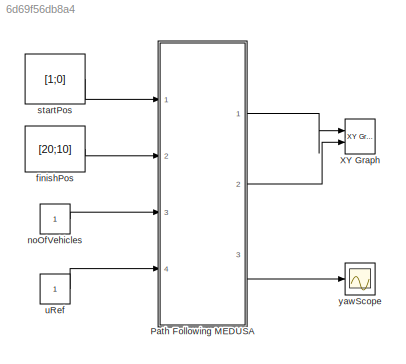
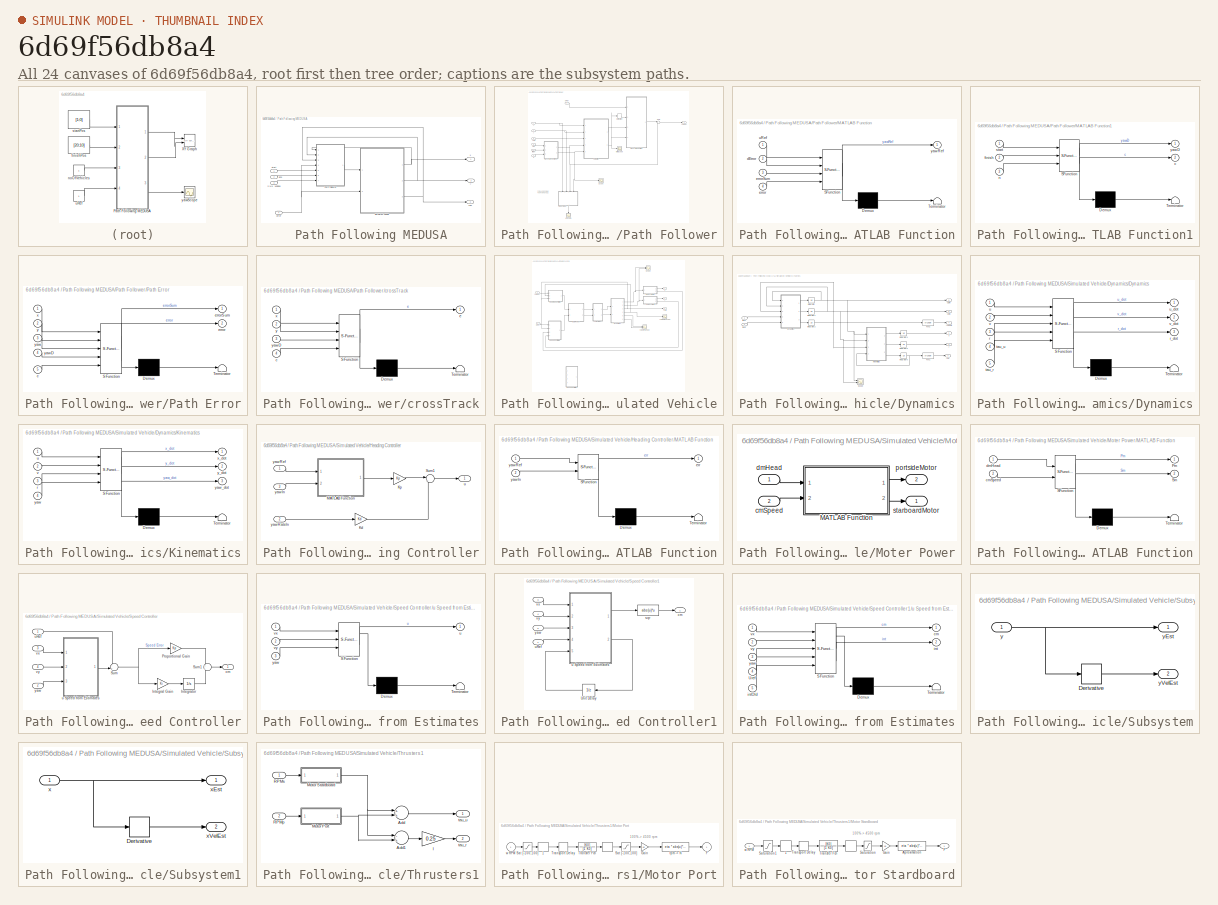
[diagram: thumbnail index - all 24 canvases of the model, root first then tree order]
MODEL slx_6d69f56db8a4
KIND model
CONFIG AbsTol = auto
CONFIG EnableMultiTasking = off
CONFIG FixedStep = 0.2
CONFIG MaxStep = auto
CONFIG MinStep = auto
CONFIG RelTol = 1e-3
CONFIG SampleTimeConstraint = Unconstrained
CONFIG Solver = FixedStepAuto
CONFIG SolverName = FixedStepAuto
CONFIG StartTime = 0.0
CONFIG StopTime = 240
BLOCK [SubSystem] Path Following MEDUSA
  Ports = [4, 3]
  RequestExecContextInheritance = off
  Variant = off
BLOCK [Inport] Path Following MEDUSA/End
  IconDisplay = Port number
  Port = 2
BLOCK [SubSystem] Path Following MEDUSA/Path Follower
  Ports = [7, 1]
  RequestExecContextInheritance = off
  Variant = off
BLOCK [Derivative] Path Following MEDUSA/Path Follower/Derivative
BLOCK [SubSystem] Path Following MEDUSA/Path Follower/MATLAB Function
  ErrorFcn = Stateflow.Translate.translate
  PermitHierarchicalResolution = ExplicitOnly
  Ports = [4, 1]
  RequestExecContextInheritance = off
  SFBlockType = MATLAB Function
  TreatAsAtomicUnit = on
  Variant = off
BLOCK [Demux] Path Following MEDUSA/Path Follower/MATLAB Function/ Demux 
  Outputs = 1
  Ports = [1, 1]
BLOCK [S-Function] Path Following MEDUSA/Path Follower/MATLAB Function/ SFunction 
  EnableBusSupport = on
  FunctionName = sf_sfun
  Parameters = Ts
  PortCounts = [4 2]
  Ports = [4, 2]
  SFcnIsStateOwnerBlock = off
  SFunctionDeploymentMode = off
  Tag = Stateflow S-Function straightLine 8
BLOCK [Terminator] Path Following MEDUSA/Path Follower/MATLAB Function/ Terminator 
BLOCK [Inport] Path Following MEDUSA/Path Follower/MATLAB Function/dError
  IconDisplay = Port number
  Port = 2
BLOCK [Inport] Path Following MEDUSA/Path Follower/MATLAB Function/error
  IconDisplay = Port number
  Port = 4
BLOCK [Inport] Path Following MEDUSA/Path Follower/MATLAB Function/errorSum
  IconDisplay = Port number
  Port = 3
BLOCK [Inport] Path Following MEDUSA/Path Follower/MATLAB Function/uRef
  IconDisplay = Port number
BLOCK [Outport] Path Following MEDUSA/Path Follower/MATLAB Function/yawRef
  IconDisplay = Port number
BLOCK [SubSystem] Path Following MEDUSA/Path Follower/MATLAB Function1
  ErrorFcn = Stateflow.Translate.translate
  PermitHierarchicalResolution = ExplicitOnly
  Ports = [3, 2]
  RequestExecContextInheritance = off
  SFBlockType = MATLAB Function
  TreatAsAtomicUnit = on
  Variant = off
BLOCK [Demux] Path Following MEDUSA/Path Follower/MATLAB Function1/ Demux 
  Outputs = 1
  Ports = [1, 1]
BLOCK [S-Function] Path Following MEDUSA/Path Follower/MATLAB Function1/ SFunction 
  EnableBusSupport = on
  FunctionName = sf_sfun
  PortCounts = [3 3]
  Ports = [3, 3]
  SFcnIsStateOwnerBlock = off
  SFunctionDeploymentMode = off
  Tag = Stateflow S-Function straightLine 9
BLOCK [Terminator] Path Following MEDUSA/Path Follower/MATLAB Function1/ Terminator 
BLOCK [Outport] Path Following MEDUSA/Path Follower/MATLAB Function1/c
  IconDisplay = Port number
  Port = 2
BLOCK [Inport] Path Following MEDUSA/Path Follower/MATLAB Function1/finish
  IconDisplay = Port number
  Port = 2
BLOCK [Inport] Path Following MEDUSA/Path Follower/MATLAB Function1/n
  IconDisplay = Port number
  Port = 3
BLOCK [Inport] Path Following MEDUSA/Path Follower/MATLAB Function1/start
  IconDisplay = Port number
BLOCK [Outport] Path Following MEDUSA/Path Follower/MATLAB Function1/yawD
  IconDisplay = Port number
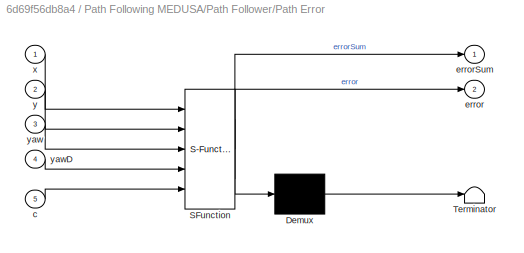
BLOCK [SubSystem] Path Following MEDUSA/Path Follower/Path Error
  ErrorFcn = Stateflow.Translate.translate
  PermitHierarchicalResolution = ExplicitOnly
  Ports = [5, 2]
  RequestExecContextInheritance = off
  SFBlockType = MATLAB Function
  TreatAsAtomicUnit = on
  Variant = off
BLOCK [Demux] Path Following MEDUSA/Path Follower/Path Error/ Demux 
  Outputs = 1
  Ports = [1, 1]
BLOCK [S-Function] Path Following MEDUSA/Path Follower/Path Error/ SFunction 
  EnableBusSupport = on
  FunctionName = sf_sfun
  PortCounts = [5 3]
  Ports = [5, 3]
  SFcnIsStateOwnerBlock = off
  SFunctionDeploymentMode = off
  Tag = Stateflow S-Function straightLine 7
BLOCK [Terminator] Path Following MEDUSA/Path Follower/Path Error/ Terminator 
BLOCK [Inport] Path Following MEDUSA/Path Follower/Path Error/c
  IconDisplay = Port number
  Port = 5
BLOCK [Outport] Path Following MEDUSA/Path Follower/Path Error/error
  IconDisplay = Port number
  Port = 2
BLOCK [Outport] Path Following MEDUSA/Path Follower/Path Error/errorSum
  IconDisplay = Port number
BLOCK [Inport] Path Following MEDUSA/Path Follower/Path Error/x
  IconDisplay = Port number
BLOCK [Inport] Path Following MEDUSA/Path Follower/Path Error/y
  IconDisplay = Port number
  Port = 2
BLOCK [Inport] Path Following MEDUSA/Path Follower/Path Error/yaw
  IconDisplay = Port number
  Port = 3
BLOCK [Inport] Path Following MEDUSA/Path Follower/Path Error/yawD
  IconDisplay = Port number
  Port = 4
BLOCK [Scope] Path Following MEDUSA/Path Follower/Scope
  NumInputPorts = 1
  Ports = [1]
  ScopeSpecificationString = Simulink.scopes.TimeScopeBlockCfg('CurrentConfiguration', extmgr.ConfigurationSet(extmgr.Configuration('Core','General UI',true),extmgr.Configuration('Core','Source UI',true),extmgr.Configuration('Sources','WiredSimulink',true,'DataLoggingVariableName','ScopeData5'),extmgr.Configuration('Visuals','Time Domain',true,'SerializedDisplays',{struct('MinYLimReal','-0.62632','MaxYLimReal','-0.42632','YLa...<+1379ch>
BLOCK [Sum] Path Following MEDUSA/Path Follower/Sum
  IconShape = round
  InputSameDT = off
  Inputs = |++
  OutDataTypeStr = Inherit: Inherit via internal rule
  Ports = [2, 1]
  SaturateOnIntegerOverflow = off
BLOCK [SubSystem] Path Following MEDUSA/Path Follower/crossTrack
  ErrorFcn = Stateflow.Translate.translate
  PermitHierarchicalResolution = ExplicitOnly
  Ports = [4, 1]
  RequestExecContextInheritance = off
  SFBlockType = MATLAB Function
  TreatAsAtomicUnit = on
  Variant = off
BLOCK [Demux] Path Following MEDUSA/Path Follower/crossTrack/ Demux 
  Outputs = 1
  Ports = [1, 1]
BLOCK [S-Function] Path Following MEDUSA/Path Follower/crossTrack/ SFunction 
  EnableBusSupport = on
  FunctionName = sf_sfun
  PortCounts = [4 2]
  Ports = [4, 2]
  SFcnIsStateOwnerBlock = off
  SFunctionDeploymentMode = off
  Tag = Stateflow S-Function straightLine 10
BLOCK [Terminator] Path Following MEDUSA/Path Follower/crossTrack/ Terminator 
BLOCK [Inport] Path Following MEDUSA/Path Follower/crossTrack/c
  IconDisplay = Port number
  Port = 4
BLOCK [Outport] Path Following MEDUSA/Path Follower/crossTrack/e
  IconDisplay = Port number
BLOCK [Inport] Path Following MEDUSA/Path Follower/crossTrack/x
  IconDisplay = Port number
BLOCK [Inport] Path Following MEDUSA/Path Follower/crossTrack/y
  IconDisplay = Port number
  Port = 2
BLOCK [Inport] Path Following MEDUSA/Path Follower/crossTrack/yawD
  IconDisplay = Port number
  Port = 3
BLOCK [Scope] Path Following MEDUSA/Path Follower/eScope
  NumInputPorts = 1
  Ports = [1]
  ScopeSpecificationString = Simulink.scopes.TimeScopeBlockCfg('CurrentConfiguration', extmgr.ConfigurationSet(extmgr.Configuration('Core','General UI',true),extmgr.Configuration('Core','Source UI',true),extmgr.Configuration('Sources','WiredSimulink',true,'DataLoggingVariableName','ScopeData4'),extmgr.Configuration('Visuals','Time Domain',true,'SerializedDisplays',{struct('MinYLimReal','-0.11922','MaxYLimReal','0.53074','YLab...<+1450ch>
BLOCK [Scope] Path Following MEDUSA/Path Follower/errorScope
  NumInputPorts = 1
  Ports = [1]
  ScopeSpecificationString = Simulink.scopes.TimeScopeBlockCfg('CurrentConfiguration', extmgr.ConfigurationSet(extmgr.Configuration('Core','General UI',true),extmgr.Configuration('Core','Source UI',true),extmgr.Configuration('Sources','WiredSimulink',true,'DataLoggingVariableName','ScopeData1'),extmgr.Configuration('Visuals','Time Domain',true,'SerializedDisplays',{struct('MinYLimReal','-6.50896','MaxYLimReal','31.56604','YLa...<+1481ch>
BLOCK [Inport] Path Following MEDUSA/Path Follower/finish
  IconDisplay = Port number
  Port = 6
BLOCK [Inport] Path Following MEDUSA/Path Follower/n 
  IconDisplay = Port number
  Port = 7
BLOCK [Inport] Path Following MEDUSA/Path Follower/start
  IconDisplay = Port number
  Port = 5
BLOCK [Inport] Path Following MEDUSA/Path Follower/uRef
  IconDisplay = Port number
  Port = 4
BLOCK [Inport] Path Following MEDUSA/Path Follower/x
  IconDisplay = Port number
BLOCK [Inport] Path Following MEDUSA/Path Follower/y 
  IconDisplay = Port number
  Port = 2
BLOCK [Inport] Path Following MEDUSA/Path Follower/yaw
  IconDisplay = Port number
  Port = 3
BLOCK [Outport] Path Following MEDUSA/Path Follower/yawRef
  IconDisplay = Port number
BLOCK [SubSystem] Path Following MEDUSA/Simulated Vehicle
  Ports = [2, 3]
  RequestExecContextInheritance = off
  Variant = off
BLOCK [SubSystem] Path Following MEDUSA/Simulated Vehicle/Dynamics
  Ports = [2, 6]
  RequestExecContextInheritance = off
  Variant = off
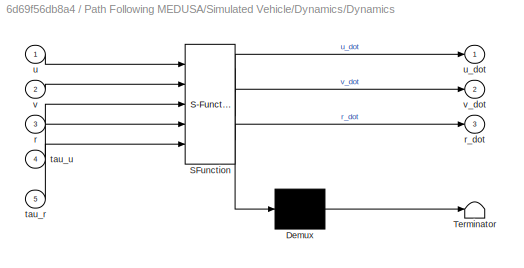
BLOCK [SubSystem] Path Following MEDUSA/Simulated Vehicle/Dynamics/Dynamics
  ErrorFcn = Stateflow.Translate.translate
  PermitHierarchicalResolution = ExplicitOnly
  Ports = [5, 3]
  RequestExecContextInheritance = off
  SFBlockType = MATLAB Function
  TreatAsAtomicUnit = on
  Variant = off
BLOCK [Demux] Path Following MEDUSA/Simulated Vehicle/Dynamics/Dynamics/ Demux 
  Outputs = 1
  Ports = [1, 1]
BLOCK [S-Function] Path Following MEDUSA/Simulated Vehicle/Dynamics/Dynamics/ SFunction 
  EnableBusSupport = on
  FunctionName = sf_sfun
  PortCounts = [5 4]
  Ports = [5, 4]
  SFcnIsStateOwnerBlock = off
  SFunctionDeploymentMode = off
  Tag = Stateflow S-Function straightLine 2
BLOCK [Terminator] Path Following MEDUSA/Simulated Vehicle/Dynamics/Dynamics/ Terminator 
BLOCK [Inport] Path Following MEDUSA/Simulated Vehicle/Dynamics/Dynamics/r
  IconDisplay = Port number
  Port = 3
BLOCK [Outport] Path Following MEDUSA/Simulated Vehicle/Dynamics/Dynamics/r_dot
  IconDisplay = Port number
  Port = 3
BLOCK [Inport] Path Following MEDUSA/Simulated Vehicle/Dynamics/Dynamics/tau_r
  IconDisplay = Port number
  Port = 5
BLOCK [Inport] Path Following MEDUSA/Simulated Vehicle/Dynamics/Dynamics/tau_u
  IconDisplay = Port number
  Port = 4
BLOCK [Inport] Path Following MEDUSA/Simulated Vehicle/Dynamics/Dynamics/u
  IconDisplay = Port number
BLOCK [Outport] Path Following MEDUSA/Simulated Vehicle/Dynamics/Dynamics/u_dot
  IconDisplay = Port number
BLOCK [Inport] Path Following MEDUSA/Simulated Vehicle/Dynamics/Dynamics/v
  IconDisplay = Port number
  Port = 2
BLOCK [Outport] Path Following MEDUSA/Simulated Vehicle/Dynamics/Dynamics/v_dot
  IconDisplay = Port number
  Port = 2
BLOCK [Fcn] Path Following MEDUSA/Simulated Vehicle/Dynamics/Fcn1
  Expr = u*180/pi
BLOCK [Fcn] Path Following MEDUSA/Simulated Vehicle/Dynamics/Fcn2
  Expr = u*180/pi
BLOCK [Integrator] Path Following MEDUSA/Simulated Vehicle/Dynamics/Integrator
  Ports = [1, 1]
BLOCK [Integrator] Path Following MEDUSA/Simulated Vehicle/Dynamics/Integrator1
  Ports = [1, 1]
BLOCK [Integrator] Path Following MEDUSA/Simulated Vehicle/Dynamics/Integrator2
  Ports = [1, 1]
BLOCK [Integrator] Path Following MEDUSA/Simulated Vehicle/Dynamics/Integrator4
  Ports = [1, 1]
BLOCK [Integrator] Path Following MEDUSA/Simulated Vehicle/Dynamics/Integrator5
  Ports = [1, 1]
BLOCK [Integrator] Path Following MEDUSA/Simulated Vehicle/Dynamics/Integrator6
  Ports = [1, 1]
BLOCK [SubSystem] Path Following MEDUSA/Simulated Vehicle/Dynamics/Kinematics
  ErrorFcn = Stateflow.Translate.translate
  PermitHierarchicalResolution = ExplicitOnly
  Ports = [4, 3]
  RequestExecContextInheritance = off
  SFBlockType = MATLAB Function
  TreatAsAtomicUnit = on
  Variant = off
BLOCK [Demux] Path Following MEDUSA/Simulated Vehicle/Dynamics/Kinematics/ Demux 
  Outputs = 1
  Ports = [1, 1]
BLOCK [S-Function] Path Following MEDUSA/Simulated Vehicle/Dynamics/Kinematics/ SFunction 
  EnableBusSupport = on
  FunctionName = sf_sfun
  PortCounts = [4 4]
  Ports = [4, 4]
  SFcnIsStateOwnerBlock = off
  SFunctionDeploymentMode = off
  Tag = Stateflow S-Function straightLine 1
BLOCK [Terminator] Path Following MEDUSA/Simulated Vehicle/Dynamics/Kinematics/ Terminator 
BLOCK [Inport] Path Following MEDUSA/Simulated Vehicle/Dynamics/Kinematics/r
  IconDisplay = Port number
  Port = 3
BLOCK [Inport] Path Following MEDUSA/Simulated Vehicle/Dynamics/Kinematics/u
  IconDisplay = Port number
BLOCK [Inport] Path Following MEDUSA/Simulated Vehicle/Dynamics/Kinematics/v
  IconDisplay = Port number
  Port = 2
BLOCK [Outport] Path Following MEDUSA/Simulated Vehicle/Dynamics/Kinematics/x_dot
  IconDisplay = Port number
BLOCK [Outport] Path Following MEDUSA/Simulated Vehicle/Dynamics/Kinematics/y_dot
  IconDisplay = Port number
  Port = 2
BLOCK [Inport] Path Following MEDUSA/Simulated Vehicle/Dynamics/Kinematics/yaw
  IconDisplay = Port number
  Port = 4
BLOCK [Outport] Path Following MEDUSA/Simulated Vehicle/Dynamics/Kinematics/yaw_dot
  IconDisplay = Port number
  Port = 3
BLOCK [Scope] Path Following MEDUSA/Simulated Vehicle/Dynamics/Scope
  NumInputPorts = 2
  Ports = [2]
  ScopeSpecificationString = Simulink.scopes.TimeScopeBlockCfg('CurrentConfiguration', extmgr.ConfigurationSet(extmgr.Configuration('Core','General UI',true),extmgr.Configuration('Core','Source UI',true),extmgr.Configuration('Sources','WiredSimulink',true,'DataLoggingVariableName','ScopeData1'),extmgr.Configuration('Visuals','Time Domain',true,'SerializedDisplays',{struct('MinYLimReal','-0.35776','MaxYLimReal','1.16677','YLab...<+1438ch>
BLOCK [Inport] Path Following MEDUSA/Simulated Vehicle/Dynamics/tauR
  IconDisplay = Port number
  Port = 2
BLOCK [Inport] Path Following MEDUSA/Simulated Vehicle/Dynamics/tauU
  IconDisplay = Port number
BLOCK [Outport] Path Following MEDUSA/Simulated Vehicle/Dynamics/uSim
  IconDisplay = Port number
  Port = 5
BLOCK [Outport] Path Following MEDUSA/Simulated Vehicle/Dynamics/vSim
  IconDisplay = Port number
  Port = 6
BLOCK [Outport] Path Following MEDUSA/Simulated Vehicle/Dynamics/x
  IconDisplay = Port number
BLOCK [Outport] Path Following MEDUSA/Simulated Vehicle/Dynamics/y
  IconDisplay = Port number
  Port = 2
BLOCK [Outport] Path Following MEDUSA/Simulated Vehicle/Dynamics/yaw
  IconDisplay = Port number
  Port = 3
BLOCK [Outport] Path Following MEDUSA/Simulated Vehicle/Dynamics/yawRate
  IconDisplay = Port number
  Port = 4
BLOCK [SubSystem] Path Following MEDUSA/Simulated Vehicle/Heading Controller
  Ports = [3, 1]
  RequestExecContextInheritance = off
  Variant = off
BLOCK [Gain] Path Following MEDUSA/Simulated Vehicle/Heading Controller/Kd
  Gain = Kd
  OutDataTypeStr = Inherit: Inherit via internal rule
  ParamDataTypeStr = Inherit: Inherit via internal rule
  SaturateOnIntegerOverflow = off
BLOCK [Gain] Path Following MEDUSA/Simulated Vehicle/Heading Controller/Kp
  Gain = Kp
  OutDataTypeStr = Inherit: Inherit via internal rule
  ParamDataTypeStr = Inherit: Inherit via internal rule
  SaturateOnIntegerOverflow = off
BLOCK [SubSystem] Path Following MEDUSA/Simulated Vehicle/Heading Controller/MATLAB Function
  ErrorFcn = Stateflow.Translate.translate
  PermitHierarchicalResolution = ExplicitOnly
  Ports = [2, 1]
  RequestExecContextInheritance = off
  SFBlockType = MATLAB Function
  TreatAsAtomicUnit = on
  Variant = off
BLOCK [Demux] Path Following MEDUSA/Simulated Vehicle/Heading Controller/MATLAB Function/ Demux 
  Outputs = 1
  Ports = [1, 1]
BLOCK [S-Function] Path Following MEDUSA/Simulated Vehicle/Heading Controller/MATLAB Function/ SFunction 
  EnableBusSupport = on
  FunctionName = sf_sfun
  PortCounts = [2 2]
  Ports = [2, 2]
  SFcnIsStateOwnerBlock = off
  SFunctionDeploymentMode = off
  Tag = Stateflow S-Function straightLine 5
BLOCK [Terminator] Path Following MEDUSA/Simulated Vehicle/Heading Controller/MATLAB Function/ Terminator 
BLOCK [Outport] Path Following MEDUSA/Simulated Vehicle/Heading Controller/MATLAB Function/err
  IconDisplay = Port number
BLOCK [Inport] Path Following MEDUSA/Simulated Vehicle/Heading Controller/MATLAB Function/yawIn
  IconDisplay = Port number
  Port = 2
BLOCK [Inport] Path Following MEDUSA/Simulated Vehicle/Heading Controller/MATLAB Function/yawRef
  IconDisplay = Port number
BLOCK [Sum] Path Following MEDUSA/Simulated Vehicle/Heading Controller/Sum1
  IconShape = round
  InputSameDT = off
  Inputs = |+-
  OutDataTypeStr = Inherit: Inherit via internal rule
  Ports = [2, 1]
  SaturateOnIntegerOverflow = off
BLOCK [Outport] Path Following MEDUSA/Simulated Vehicle/Heading Controller/u
  IconDisplay = Port number
BLOCK [Inport] Path Following MEDUSA/Simulated Vehicle/Heading Controller/yawIn
  IconDisplay = Port number
  Port = 3
BLOCK [Inport] Path Following MEDUSA/Simulated Vehicle/Heading Controller/yawRateIn
  IconDisplay = Port number
  Port = 2
BLOCK [Inport] Path Following MEDUSA/Simulated Vehicle/Heading Controller/yawRef
  IconDisplay = Port number
BLOCK [SubSystem] Path Following MEDUSA/Simulated Vehicle/Moter Power
  Ports = [2, 2]
  RequestExecContextInheritance = off
  Variant = off
BLOCK [SubSystem] Path Following MEDUSA/Simulated Vehicle/Moter Power/MATLAB Function
  ErrorFcn = Stateflow.Translate.translate
  PermitHierarchicalResolution = ExplicitOnly
  Ports = [2, 2]
  RequestExecContextInheritance = off
  SFBlockType = MATLAB Function
  TreatAsAtomicUnit = on
  Variant = off
BLOCK [Demux] Path Following MEDUSA/Simulated Vehicle/Moter Power/MATLAB Function/ Demux 
  Outputs = 1
  Ports = [1, 1]
BLOCK [S-Function] Path Following MEDUSA/Simulated Vehicle/Moter Power/MATLAB Function/ SFunction 
  EnableBusSupport = on
  FunctionName = sf_sfun
  PortCounts = [2 3]
  Ports = [2, 3]
  SFcnIsStateOwnerBlock = off
  SFunctionDeploymentMode = off
  Tag = Stateflow S-Function straightLine 4
BLOCK [Terminator] Path Following MEDUSA/Simulated Vehicle/Moter Power/MATLAB Function/ Terminator 
BLOCK [Outport] Path Following MEDUSA/Simulated Vehicle/Moter Power/MATLAB Function/Pm
  IconDisplay = Port number
BLOCK [Outport] Path Following MEDUSA/Simulated Vehicle/Moter Power/MATLAB Function/Sm
  IconDisplay = Port number
  Port = 2
BLOCK [Inport] Path Following MEDUSA/Simulated Vehicle/Moter Power/MATLAB Function/cmSpeed
  IconDisplay = Port number
  Port = 2
BLOCK [Inport] Path Following MEDUSA/Simulated Vehicle/Moter Power/MATLAB Function/dmHead
  IconDisplay = Port number
BLOCK [Inport] Path Following MEDUSA/Simulated Vehicle/Moter Power/cmSpeed
  IconDisplay = Port number
  Port = 2
BLOCK [Inport] Path Following MEDUSA/Simulated Vehicle/Moter Power/dmHead
  IconDisplay = Port number
BLOCK [Outport] Path Following MEDUSA/Simulated Vehicle/Moter Power/portsideMotor
  IconDisplay = Port number
  Port = 2
BLOCK [Outport] Path Following MEDUSA/Simulated Vehicle/Moter Power/starboardMotor
  IconDisplay = Port number
BLOCK [Scope] Path Following MEDUSA/Simulated Vehicle/Scope
  NumInputPorts = 2
  Ports = [2]
  ScopeSpecificationString = Simulink.scopes.TimeScopeBlockCfg('CurrentConfiguration', extmgr.ConfigurationSet(extmgr.Configuration('Core','General UI',true),extmgr.Configuration('Core','Source UI',true),extmgr.Configuration('Sources','WiredSimulink',true,'DataLoggingVariableName','ScopeData2'),extmgr.Configuration('Visuals','Time Domain',true,'SerializedDisplays',{struct('MinYLimReal','-90.83707','MaxYLimReal','817.53361','Y...<+1409ch>
BLOCK [SubSystem] Path Following MEDUSA/Simulated Vehicle/Speed Controller
  Commented = on
  Ports = [4, 1]
  RequestExecContextInheritance = off
  Variant = off
BLOCK [Gain] Path Following MEDUSA/Simulated Vehicle/Speed Controller/Integral Gain
  Gain = Ki
  OutDataTypeStr = Inherit: Inherit via internal rule
  ParamDataTypeStr = Inherit: Inherit via internal rule
  SaturateOnIntegerOverflow = off
BLOCK [Integrator] Path Following MEDUSA/Simulated Vehicle/Speed Controller/Integrator
  Ports = [1, 1]
BLOCK [Gain] Path Following MEDUSA/Simulated Vehicle/Speed Controller/Proportional Gain
  Gain = Kp
  OutDataTypeStr = Inherit: Inherit via internal rule
  ParamDataTypeStr = Inherit: Inherit via internal rule
  SaturateOnIntegerOverflow = off
BLOCK [Sum] Path Following MEDUSA/Simulated Vehicle/Speed Controller/Sum
  IconShape = round
  InputSameDT = off
  Inputs = -+|
  OutDataTypeStr = Inherit: Inherit via internal rule
  Ports = [2, 1]
  SaturateOnIntegerOverflow = off
BLOCK [Sum] Path Following MEDUSA/Simulated Vehicle/Speed Controller/Sum1
  IconShape = round
  InputSameDT = off
  Inputs = +|+
  OutDataTypeStr = Inherit: Inherit via internal rule
  Ports = [2, 1]
  SaturateOnIntegerOverflow = off
BLOCK [Outport] Path Following MEDUSA/Simulated Vehicle/Speed Controller/cm
  IconDisplay = Port number
BLOCK [SubSystem] Path Following MEDUSA/Simulated Vehicle/Speed Controller/u Speed from Estimates
  ErrorFcn = Stateflow.Translate.translate
  PermitHierarchicalResolution = ExplicitOnly
  Ports = [3, 1]
  RequestExecContextInheritance = off
  SFBlockType = MATLAB Function
  TreatAsAtomicUnit = on
  Variant = off
BLOCK [Demux] Path Following MEDUSA/Simulated Vehicle/Speed Controller/u Speed from Estimates/ Demux 
  Outputs = 1
  Ports = [1, 1]
BLOCK [S-Function] Path Following MEDUSA/Simulated Vehicle/Speed Controller/u Speed from Estimates/ SFunction 
  EnableBusSupport = on
  FunctionName = sf_sfun
  PortCounts = [3 2]
  Ports = [3, 2]
  SFcnIsStateOwnerBlock = off
  SFunctionDeploymentMode = off
  Tag = Stateflow S-Function straightLine 6
BLOCK [Terminator] Path Following MEDUSA/Simulated Vehicle/Speed Controller/u Speed from Estimates/ Terminator 
BLOCK [Outport] Path Following MEDUSA/Simulated Vehicle/Speed Controller/u Speed from Estimates/u
  IconDisplay = Port number
BLOCK [Inport] Path Following MEDUSA/Simulated Vehicle/Speed Controller/u Speed from Estimates/vx
  IconDisplay = Port number
BLOCK [Inport] Path Following MEDUSA/Simulated Vehicle/Speed Controller/u Speed from Estimates/vy
  IconDisplay = Port number
  Port = 2
BLOCK [Inport] Path Following MEDUSA/Simulated Vehicle/Speed Controller/u Speed from Estimates/yaw
  IconDisplay = Port number
  Port = 3
BLOCK [Inport] Path Following MEDUSA/Simulated Vehicle/Speed Controller/uRef
  IconDisplay = Port number
BLOCK [Inport] Path Following MEDUSA/Simulated Vehicle/Speed Controller/vx
  IconDisplay = Port number
  Port = 3
BLOCK [Inport] Path Following MEDUSA/Simulated Vehicle/Speed Controller/vy
  IconDisplay = Port number
  Port = 4
BLOCK [Inport] Path Following MEDUSA/Simulated Vehicle/Speed Controller/yaw
  IconDisplay = Port number
  Port = 2
BLOCK [SubSystem] Path Following MEDUSA/Simulated Vehicle/Speed Controller1
  Ports = [4, 1]
  RequestExecContextInheritance = off
  Variant = off
BLOCK [UnitDelay] Path Following MEDUSA/Simulated Vehicle/Speed Controller1/Unit Delay
  SampleTime = -1
BLOCK [Outport] Path Following MEDUSA/Simulated Vehicle/Speed Controller1/cm
  IconDisplay = Port number
BLOCK [Fcn] Path Following MEDUSA/Simulated Vehicle/Speed Controller1/sqr
  Expr = abs(u)*u
BLOCK [SubSystem] Path Following MEDUSA/Simulated Vehicle/Speed Controller1/u Speed from Estimates
  ErrorFcn = Stateflow.Translate.translate
  PermitHierarchicalResolution = ExplicitOnly
  Ports = [5, 2]
  RequestExecContextInheritance = off
  SFBlockType = MATLAB Function
  TreatAsAtomicUnit = on
  Variant = off
BLOCK [Demux] Path Following MEDUSA/Simulated Vehicle/Speed Controller1/u Speed from Estimates/ Demux 
  Outputs = 1
  Ports = [1, 1]
BLOCK [S-Function] Path Following MEDUSA/Simulated Vehicle/Speed Controller1/u Speed from Estimates/ SFunction 
  EnableBusSupport = on
  FunctionName = sf_sfun
  Parameters = KSat,Ki,Kp
  PortCounts = [5 3]
  Ports = [5, 3]
  SFcnIsStateOwnerBlock = off
  SFunctionDeploymentMode = off
  Tag = Stateflow S-Function straightLine 3
BLOCK [Terminator] Path Following MEDUSA/Simulated Vehicle/Speed Controller1/u Speed from Estimates/ Terminator 
BLOCK [Inport] Path Following MEDUSA/Simulated Vehicle/Speed Controller1/u Speed from Estimates/Uref
  IconDisplay = Port number
  Port = 4
BLOCK [Outport] Path Following MEDUSA/Simulated Vehicle/Speed Controller1/u Speed from Estimates/cm
  IconDisplay = Port number
BLOCK [Outport] Path Following MEDUSA/Simulated Vehicle/Speed Controller1/u Speed from Estimates/int
  IconDisplay = Port number
  Port = 2
BLOCK [Inport] Path Following MEDUSA/Simulated Vehicle/Speed Controller1/u Speed from Estimates/intOld
  IconDisplay = Port number
  Port = 5
BLOCK [Inport] Path Following MEDUSA/Simulated Vehicle/Speed Controller1/u Speed from Estimates/vx
  IconDisplay = Port number
BLOCK [Inport] Path Following MEDUSA/Simulated Vehicle/Speed Controller1/u Speed from Estimates/vy
  IconDisplay = Port number
  Port = 2
BLOCK [Inport] Path Following MEDUSA/Simulated Vehicle/Speed Controller1/u Speed from Estimates/yaw
  IconDisplay = Port number
  Port = 3
BLOCK [Inport] Path Following MEDUSA/Simulated Vehicle/Speed Controller1/uRef
  IconDisplay = Port number
BLOCK [Inport] Path Following MEDUSA/Simulated Vehicle/Speed Controller1/vx
  IconDisplay = Port number
  Port = 3
BLOCK [Inport] Path Following MEDUSA/Simulated Vehicle/Speed Controller1/vy
  IconDisplay = Port number
  Port = 4
BLOCK [Inport] Path Following MEDUSA/Simulated Vehicle/Speed Controller1/yaw
  IconDisplay = Port number
  Port = 2
BLOCK [SubSystem] Path Following MEDUSA/Simulated Vehicle/Subsystem
  Ports = [1, 2]
  RequestExecContextInheritance = off
  Variant = off
BLOCK [Derivative] Path Following MEDUSA/Simulated Vehicle/Subsystem/Derivative
BLOCK [Inport] Path Following MEDUSA/Simulated Vehicle/Subsystem/y
  IconDisplay = Port number
BLOCK [Outport] Path Following MEDUSA/Simulated Vehicle/Subsystem/yEst
  IconDisplay = Port number
BLOCK [Outport] Path Following MEDUSA/Simulated Vehicle/Subsystem/yVelEst
  IconDisplay = Port number
  Port = 2
BLOCK [SubSystem] Path Following MEDUSA/Simulated Vehicle/Subsystem1
  Ports = [1, 2]
  RequestExecContextInheritance = off
  Variant = off
BLOCK [Derivative] Path Following MEDUSA/Simulated Vehicle/Subsystem1/Derivative
BLOCK [Inport] Path Following MEDUSA/Simulated Vehicle/Subsystem1/x
  IconDisplay = Port number
BLOCK [Outport] Path Following MEDUSA/Simulated Vehicle/Subsystem1/xEst
  IconDisplay = Port number
BLOCK [Outport] Path Following MEDUSA/Simulated Vehicle/Subsystem1/xVelEst
  IconDisplay = Port number
  Port = 2
BLOCK [SubSystem] Path Following MEDUSA/Simulated Vehicle/Thrusters1
  Ports = [2, 2]
  RequestExecContextInheritance = off
  Variant = off
BLOCK [Sum] Path Following MEDUSA/Simulated Vehicle/Thrusters1/Add
  InputSameDT = off
  OutDataTypeStr = Inherit: Inherit via internal rule
  Ports = [2, 1]
  SaturateOnIntegerOverflow = off
BLOCK [Sum] Path Following MEDUSA/Simulated Vehicle/Thrusters1/Add1
  InputSameDT = off
  Inputs = -+
  OutDataTypeStr = Inherit: Inherit via internal rule
  Ports = [2, 1]
  SaturateOnIntegerOverflow = off
BLOCK [SubSystem] Path Following MEDUSA/Simulated Vehicle/Thrusters1/Motor Port
  Ports = [1, 1]
  RequestExecContextInheritance = off
  Variant = off
BLOCK [Rounding] Path Following MEDUSA/Simulated Vehicle/Thrusters1/Motor Port/  
  Operator = round
BLOCK [Rounding] Path Following MEDUSA/Simulated Vehicle/Thrusters1/Motor Port/  1
  Operator = round
BLOCK [Outport] Path Following MEDUSA/Simulated Vehicle/Thrusters1/Motor Port/F
  IconDisplay = Port number
BLOCK [Gain] Path Following MEDUSA/Simulated Vehicle/Thrusters1/Motor Port/Gain
  Gain = 45
  OutDataTypeStr = Inherit: Inherit via internal rule
  ParamDataTypeStr = Inherit: Inherit via internal rule
  SaturateOnIntegerOverflow = off
BLOCK [Saturate] Path Following MEDUSA/Simulated Vehicle/Thrusters1/Motor Port/Sat [-100,100]
  InputPortMap = u0
  LowerLimit = -100
  Ports = [1, 1]
  UpperLimit = 100
BLOCK [Saturate] Path Following MEDUSA/Simulated Vehicle/Thrusters1/Motor Port/Sat [-100,100] 
  InputPortMap = u0
  LowerLimit = -100
  Ports = [1, 1]
  UpperLimit = 100
BLOCK [TransferFcn] Path Following MEDUSA/Simulated Vehicle/Thrusters1/Motor Port/Transfer Fcn
  Denominator = [1 K0]
  Numerator = [K0]
BLOCK [TransportDelay] Path Following MEDUSA/Simulated Vehicle/Thrusters1/Motor Port/Transport Delay
  DelayTime = tau
  Ports = [1, 1]
BLOCK [Fcn] Path Following MEDUSA/Simulated Vehicle/Thrusters1/Motor Port/rpm -> N
  Expr = eta * abs(u)* u
BLOCK [Inport] Path Following MEDUSA/Simulated Vehicle/Thrusters1/Motor Port/w RPM
  IconDisplay = Port number
BLOCK [SubSystem] Path Following MEDUSA/Simulated Vehicle/Thrusters1/Motor Stardboard
  Ports = [1, 1]
  RequestExecContextInheritance = off
  Variant = off
BLOCK [Rounding] Path Following MEDUSA/Simulated Vehicle/Thrusters1/Motor Stardboard/  
  Operator = round
BLOCK [Rounding] Path Following MEDUSA/Simulated Vehicle/Thrusters1/Motor Stardboard/  1
  Operator = round
BLOCK [Fcn] Path Following MEDUSA/Simulated Vehicle/Thrusters1/Motor Stardboard/Aproximation
  Expr = eta * abs(u)* u
BLOCK [Outport] Path Following MEDUSA/Simulated Vehicle/Thrusters1/Motor Stardboard/F
  IconDisplay = Port number
BLOCK [Gain] Path Following MEDUSA/Simulated Vehicle/Thrusters1/Motor Stardboard/Gain
  Gain = 45
  OutDataTypeStr = Inherit: Inherit via internal rule
  ParamDataTypeStr = Inherit: Inherit via internal rule
  SaturateOnIntegerOverflow = off
BLOCK [Saturate] Path Following MEDUSA/Simulated Vehicle/Thrusters1/Motor Stardboard/Saturation
  InputPortMap = u0
  LowerLimit = -100
  Ports = [1, 1]
  UpperLimit = 100
BLOCK [Saturate] Path Following MEDUSA/Simulated Vehicle/Thrusters1/Motor Stardboard/Saturation1
  InputPortMap = u0
  LowerLimit = -100
  Ports = [1, 1]
  UpperLimit = 100
BLOCK [TransferFcn] Path Following MEDUSA/Simulated Vehicle/Thrusters1/Motor Stardboard/Transfer Fcn
  Denominator = [1 K0]
  Numerator = [K0]
BLOCK [TransportDelay] Path Following MEDUSA/Simulated Vehicle/Thrusters1/Motor Stardboard/Transport Delay
  DelayTime = tau
  Ports = [1, 1]
BLOCK [Inport] Path Following MEDUSA/Simulated Vehicle/Thrusters1/Motor Stardboard/w RPM
  IconDisplay = Port number
BLOCK [Inport] Path Following MEDUSA/Simulated Vehicle/Thrusters1/RPMp
  IconDisplay = Port number
  Port = 2
BLOCK [Inport] Path Following MEDUSA/Simulated Vehicle/Thrusters1/RPMs
  IconDisplay = Port number
BLOCK [Gain] Path Following MEDUSA/Simulated Vehicle/Thrusters1/l
  Gain = 0.25
  OutDataTypeStr = Inherit: Inherit via internal rule
  ParamDataTypeStr = Inherit: Inherit via internal rule
  SaturateOnIntegerOverflow = off
BLOCK [Outport] Path Following MEDUSA/Simulated Vehicle/Thrusters1/tau_r
  IconDisplay = Port number
  Port = 2
BLOCK [Outport] Path Following MEDUSA/Simulated Vehicle/Thrusters1/tau_u
  IconDisplay = Port number
BLOCK [Inport] Path Following MEDUSA/Simulated Vehicle/uRef
  IconDisplay = Port number
  Port = 2
BLOCK [Scope] Path Following MEDUSA/Simulated Vehicle/velocityScope
  NumInputPorts = 2
  Ports = [2]
  ScopeSpecificationString = Simulink.scopes.TimeScopeBlockCfg('CurrentConfiguration', extmgr.ConfigurationSet(extmgr.Configuration('Core','General UI',true),extmgr.Configuration('Core','Source UI',true),extmgr.Configuration('Sources','WiredSimulink',true,'DataLoggingVariableName','ScopeData1'),extmgr.Configuration('Visuals','Time Domain',true),extmgr.Configuration('Tools','Plot Navigation',true),extmgr.Configuration('Tools',...<+40ch>
BLOCK [Outport] Path Following MEDUSA/Simulated Vehicle/x
  IconDisplay = Port number
BLOCK [Outport] Path Following MEDUSA/Simulated Vehicle/y
  IconDisplay = Port number
  Port = 2
BLOCK [Outport] Path Following MEDUSA/Simulated Vehicle/yaw
  IconDisplay = Port number
  Port = 3
BLOCK [Scope] Path Following MEDUSA/Simulated Vehicle/yawRateScope
  NumInputPorts = 1
  Ports = [1]
  ScopeSpecificationString = Simulink.scopes.TimeScopeBlockCfg('CurrentConfiguration', extmgr.ConfigurationSet(extmgr.Configuration('Core','General UI',true),extmgr.Configuration('Core','Source UI',true),extmgr.Configuration('Sources','WiredSimulink',true,'DataLoggingVariableName','ScopeData2'),extmgr.Configuration('Visuals','Time Domain',true),extmgr.Configuration('Tools','Plot Navigation',true),extmgr.Configuration('Tools',...<+40ch>
BLOCK [Inport] Path Following MEDUSA/Simulated Vehicle/yawRef
  IconDisplay = Port number
BLOCK [Inport] Path Following MEDUSA/Start
  IconDisplay = Port number
BLOCK [Inport] Path Following MEDUSA/n No. Vehicles
  IconDisplay = Port number
  Port = 3
BLOCK [Inport] Path Following MEDUSA/uRef
  IconDisplay = Port number
  Port = 4
BLOCK [Outport] Path Following MEDUSA/x
  IconDisplay = Port number
BLOCK [Outport] Path Following MEDUSA/y
  IconDisplay = Port number
  Port = 2
BLOCK [Outport] Path Following MEDUSA/yaw
  IconDisplay = Port number
  Port = 3
BLOCK [Reference] XY Graph  REF=simulink/Sinks/XY Graph
  Ports = [2]
  SourceBlock = simulink/Sinks/XY Graph
  SourceProductBaseCode = SL
  SourceProductName = Simulink
  SourceType = XY scope.
BLOCK [Constant] finishPos
  Value = [20;10]
BLOCK [Constant] noOfVehicles
BLOCK [Constant] startPos
  Value = [1;0]
BLOCK [Constant] uRef
BLOCK [Scope] yawScope
  NumInputPorts = 1
  Ports = [1]
  ScopeSpecificationString = Simulink.scopes.TimeScopeBlockCfg('CurrentConfiguration', extmgr.ConfigurationSet(extmgr.Configuration('Core','General UI',true),extmgr.Configuration('Core','Source UI',true),extmgr.Configuration('Sources','WiredSimulink',true,'DataLoggingVariableName','ScopeData3'),extmgr.Configuration('Visuals','Time Domain',true),extmgr.Configuration('Tools','Plot Navigation',true),extmgr.Configuration('Tools',...<+40ch>
ANNOTATION Path Following MEDUSA/Path Follower: FOR ASSESSING PERFORMANCE
ANNOTATION Path Following MEDUSA/Simulated Vehicle/Thrusters1/Motor Port: 100% -> 4500 rpm
ANNOTATION Path Following MEDUSA/Simulated Vehicle/Thrusters1/Motor Stardboard: 100% -> 4500 rpm
LINE Path Following MEDUSA/End:1 -> Path Following MEDUSA/Path Follower:6
LINE Path Following MEDUSA/Path Follower/Derivative:1 -> Path Following MEDUSA/Path Follower/MATLAB Function:2
NET Path Following MEDUSA/Path Follower/MATLAB Function1:1 -> Path Following MEDUSA/Path Follower/Path Error:4, Path Following MEDUSA/Path Follower/Sum:2, Path Following MEDUSA/Path Follower/crossTrack:3
NET Path Following MEDUSA/Path Follower/MATLAB Function1:2 -> Path Following MEDUSA/Path Follower/Path Error:5, Path Following MEDUSA/Path Follower/Scope:1, Path Following MEDUSA/Path Follower/crossTrack:4
LINE Path Following MEDUSA/Path Follower/MATLAB Function:1 -> Path Following MEDUSA/Path Follower/Sum:1
LINE Path Following MEDUSA/Path Follower/Path Error:1 -> Path Following MEDUSA/Path Follower/MATLAB Function:3
NET Path Following MEDUSA/Path Follower/Path Error:2 -> Path Following MEDUSA/Path Follower/Derivative:1, Path Following MEDUSA/Path Follower/MATLAB Function:4, Path Following MEDUSA/Path Follower/errorScope:1
LINE Path Following MEDUSA/Path Follower/Sum:1 -> Path Following MEDUSA/Path Follower/yawRef:1
LINE Path Following MEDUSA/Path Follower/crossTrack:1 -> Path Following MEDUSA/Path Follower/eScope:1
LINE Path Following MEDUSA/Path Follower/finish:1 -> Path Following MEDUSA/Path Follower/MATLAB Function1:2
LINE Path Following MEDUSA/Path Follower/n :1 -> Path Following MEDUSA/Path Follower/MATLAB Function1:3
LINE Path Following MEDUSA/Path Follower/start:1 -> Path Following MEDUSA/Path Follower/MATLAB Function1:1
LINE Path Following MEDUSA/Path Follower/uRef:1 -> Path Following MEDUSA/Path Follower/MATLAB Function:1
NET Path Following MEDUSA/Path Follower/x:1 -> Path Following MEDUSA/Path Follower/Path Error:1, Path Following MEDUSA/Path Follower/crossTrack:1
NET Path Following MEDUSA/Path Follower/y :1 -> Path Following MEDUSA/Path Follower/Path Error:2, Path Following MEDUSA/Path Follower/crossTrack:2
LINE Path Following MEDUSA/Path Follower/yaw:1 -> Path Following MEDUSA/Path Follower/Path Error:3
LINE Path Following MEDUSA/Path Follower:1 -> Path Following MEDUSA/Simulated Vehicle:1
LINE Path Following MEDUSA/Simulated Vehicle/Dynamics/Dynamics:1 -> Path Following MEDUSA/Simulated Vehicle/Dynamics/Integrator:1
LINE Path Following MEDUSA/Simulated Vehicle/Dynamics/Dynamics:2 -> Path Following MEDUSA/Simulated Vehicle/Dynamics/Integrator1:1
LINE Path Following MEDUSA/Simulated Vehicle/Dynamics/Dynamics:3 -> Path Following MEDUSA/Simulated Vehicle/Dynamics/Integrator2:1
LINE Path Following MEDUSA/Simulated Vehicle/Dynamics/Fcn1:1 -> Path Following MEDUSA/Simulated Vehicle/Dynamics/yaw:1
LINE Path Following MEDUSA/Simulated Vehicle/Dynamics/Fcn2:1 -> Path Following MEDUSA/Simulated Vehicle/Dynamics/yawRate:1
NET Path Following MEDUSA/Simulated Vehicle/Dynamics/Integrator1:1 -> Path Following MEDUSA/Simulated Vehicle/Dynamics/Dynamics:2, Path Following MEDUSA/Simulated Vehicle/Dynamics/Kinematics:2, Path Following MEDUSA/Simulated Vehicle/Dynamics/Scope:2, Path Following MEDUSA/Simulated Vehicle/Dynamics/vSim:1
NET Path Following MEDUSA/Simulated Vehicle/Dynamics/Integrator2:1 -> Path Following MEDUSA/Simulated Vehicle/Dynamics/Dynamics:3, Path Following MEDUSA/Simulated Vehicle/Dynamics/Fcn2:1, Path Following MEDUSA/Simulated Vehicle/Dynamics/Kinematics:3
LINE Path Following MEDUSA/Simulated Vehicle/Dynamics/Integrator4:1 -> Path Following MEDUSA/Simulated Vehicle/Dynamics/x:1
LINE Path Following MEDUSA/Simulated Vehicle/Dynamics/Integrator5:1 -> Path Following MEDUSA/Simulated Vehicle/Dynamics/y:1
NET Path Following MEDUSA/Simulated Vehicle/Dynamics/Integrator6:1 -> Path Following MEDUSA/Simulated Vehicle/Dynamics/Fcn1:1, Path Following MEDUSA/Simulated Vehicle/Dynamics/Kinematics:4
NET Path Following MEDUSA/Simulated Vehicle/Dynamics/Integrator:1 -> Path Following MEDUSA/Simulated Vehicle/Dynamics/Dynamics:1, Path Following MEDUSA/Simulated Vehicle/Dynamics/Kinematics:1, Path Following MEDUSA/Simulated Vehicle/Dynamics/Scope:1, Path Following MEDUSA/Simulated Vehicle/Dynamics/uSim:1
LINE Path Following MEDUSA/Simulated Vehicle/Dynamics/Kinematics:1 -> Path Following MEDUSA/Simulated Vehicle/Dynamics/Integrator4:1
LINE Path Following MEDUSA/Simulated Vehicle/Dynamics/Kinematics:2 -> Path Following MEDUSA/Simulated Vehicle/Dynamics/Integrator5:1
LINE Path Following MEDUSA/Simulated Vehicle/Dynamics/Kinematics:3 -> Path Following MEDUSA/Simulated Vehicle/Dynamics/Integrator6:1
LINE Path Following MEDUSA/Simulated Vehicle/Dynamics/tauR:1 -> Path Following MEDUSA/Simulated Vehicle/Dynamics/Dynamics:5
LINE Path Following MEDUSA/Simulated Vehicle/Dynamics/tauU:1 -> Path Following MEDUSA/Simulated Vehicle/Dynamics/Dynamics:4
NET Path Following MEDUSA/Simulated Vehicle/Dynamics:1 -> Path Following MEDUSA/Simulated Vehicle/Scope:1, Path Following MEDUSA/Simulated Vehicle/Subsystem1:1
NET Path Following MEDUSA/Simulated Vehicle/Dynamics:2 -> Path Following MEDUSA/Simulated Vehicle/Scope:2, Path Following MEDUSA/Simulated Vehicle/Subsystem:1
NET Path Following MEDUSA/Simulated Vehicle/Dynamics:3 -> Path Following MEDUSA/Simulated Vehicle/Heading Controller:3, Path Following MEDUSA/Simulated Vehicle/Speed Controller1:2, Path Following MEDUSA/Simulated Vehicle/yaw:1
NET Path Following MEDUSA/Simulated Vehicle/Dynamics:4 -> Path Following MEDUSA/Simulated Vehicle/Heading Controller:2, Path Following MEDUSA/Simulated Vehicle/yawRateScope:1
LINE Path Following MEDUSA/Simulated Vehicle/Dynamics:5 -> Path Following MEDUSA/Simulated Vehicle/velocityScope:1
LINE Path Following MEDUSA/Simulated Vehicle/Dynamics:6 -> Path Following MEDUSA/Simulated Vehicle/velocityScope:2
LINE Path Following MEDUSA/Simulated Vehicle/Heading Controller/Kd:1 -> Path Following MEDUSA/Simulated Vehicle/Heading Controller/Sum1:2
LINE Path Following MEDUSA/Simulated Vehicle/Heading Controller/Kp:1 -> Path Following MEDUSA/Simulated Vehicle/Heading Controller/Sum1:1
LINE Path Following MEDUSA/Simulated Vehicle/Heading Controller/MATLAB Function:1 -> Path Following MEDUSA/Simulated Vehicle/Heading Controller/Kp:1
LINE Path Following MEDUSA/Simulated Vehicle/Heading Controller/Sum1:1 -> Path Following MEDUSA/Simulated Vehicle/Heading Controller/u:1
LINE Path Following MEDUSA/Simulated Vehicle/Heading Controller/yawIn:1 -> Path Following MEDUSA/Simulated Vehicle/Heading Controller/MATLAB Function:2
LINE Path Following MEDUSA/Simulated Vehicle/Heading Controller/yawRateIn:1 -> Path Following MEDUSA/Simulated Vehicle/Heading Controller/Kd:1
LINE Path Following MEDUSA/Simulated Vehicle/Heading Controller/yawRef:1 -> Path Following MEDUSA/Simulated Vehicle/Heading Controller/MATLAB Function:1
LINE Path Following MEDUSA/Simulated Vehicle/Heading Controller:1 -> Path Following MEDUSA/Simulated Vehicle/Moter Power:1
LINE Path Following MEDUSA/Simulated Vehicle/Moter Power/MATLAB Function:1 -> Path Following MEDUSA/Simulated Vehicle/Moter Power/portsideMotor:1
LINE Path Following MEDUSA/Simulated Vehicle/Moter Power/MATLAB Function:2 -> Path Following MEDUSA/Simulated Vehicle/Moter Power/starboardMotor:1
LINE Path Following MEDUSA/Simulated Vehicle/Moter Power/cmSpeed:1 -> Path Following MEDUSA/Simulated Vehicle/Moter Power/MATLAB Function:2
LINE Path Following MEDUSA/Simulated Vehicle/Moter Power/dmHead:1 -> Path Following MEDUSA/Simulated Vehicle/Moter Power/MATLAB Function:1
LINE Path Following MEDUSA/Simulated Vehicle/Moter Power:1 -> Path Following MEDUSA/Simulated Vehicle/Thrusters1:1
LINE Path Following MEDUSA/Simulated Vehicle/Moter Power:2 -> Path Following MEDUSA/Simulated Vehicle/Thrusters1:2
LINE Path Following MEDUSA/Simulated Vehicle/Speed Controller/Integral Gain:1 -> Path Following MEDUSA/Simulated Vehicle/Speed Controller/Integrator:1
LINE Path Following MEDUSA/Simulated Vehicle/Speed Controller/Integrator:1 -> Path Following MEDUSA/Simulated Vehicle/Speed Controller/Sum1:2
LINE Path Following MEDUSA/Simulated Vehicle/Speed Controller/Proportional Gain:1 -> Path Following MEDUSA/Simulated Vehicle/Speed Controller/Sum1:1
LINE Path Following MEDUSA/Simulated Vehicle/Speed Controller/Sum1:1 -> Path Following MEDUSA/Simulated Vehicle/Speed Controller/cm:1
NET Path Following MEDUSA/Simulated Vehicle/Speed Controller/Sum:1 -> Path Following MEDUSA/Simulated Vehicle/Speed Controller/Integral Gain:1, Path Following MEDUSA/Simulated Vehicle/Speed Controller/Proportional Gain:1
LINE Path Following MEDUSA/Simulated Vehicle/Speed Controller/u Speed from Estimates:1 -> Path Following MEDUSA/Simulated Vehicle/Speed Controller/Sum:2
LINE Path Following MEDUSA/Simulated Vehicle/Speed Controller/uRef:1 -> Path Following MEDUSA/Simulated Vehicle/Speed Controller/Sum:1
LINE Path Following MEDUSA/Simulated Vehicle/Speed Controller/vx:1 -> Path Following MEDUSA/Simulated Vehicle/Speed Controller/u Speed from Estimates:1
LINE Path Following MEDUSA/Simulated Vehicle/Speed Controller/vy:1 -> Path Following MEDUSA/Simulated Vehicle/Speed Controller/u Speed from Estimates:2
LINE Path Following MEDUSA/Simulated Vehicle/Speed Controller/yaw:1 -> Path Following MEDUSA/Simulated Vehicle/Speed Controller/u Speed from Estimates:3
LINE Path Following MEDUSA/Simulated Vehicle/Speed Controller1/Unit Delay:1 -> Path Following MEDUSA/Simulated Vehicle/Speed Controller1/u Speed from Estimates:5
LINE Path Following MEDUSA/Simulated Vehicle/Speed Controller1/sqr:1 -> Path Following MEDUSA/Simulated Vehicle/Speed Controller1/cm:1
LINE Path Following MEDUSA/Simulated Vehicle/Speed Controller1/u Speed from Estimates:1 -> Path Following MEDUSA/Simulated Vehicle/Speed Controller1/sqr:1
LINE Path Following MEDUSA/Simulated Vehicle/Speed Controller1/u Speed from Estimates:2 -> Path Following MEDUSA/Simulated Vehicle/Speed Controller1/Unit Delay:1
LINE Path Following MEDUSA/Simulated Vehicle/Speed Controller1/uRef:1 -> Path Following MEDUSA/Simulated Vehicle/Speed Controller1/u Speed from Estimates:4
LINE Path Following MEDUSA/Simulated Vehicle/Speed Controller1/vx:1 -> Path Following MEDUSA/Simulated Vehicle/Speed Controller1/u Speed from Estimates:1
LINE Path Following MEDUSA/Simulated Vehicle/Speed Controller1/vy:1 -> Path Following MEDUSA/Simulated Vehicle/Speed Controller1/u Speed from Estimates:2
LINE Path Following MEDUSA/Simulated Vehicle/Speed Controller1/yaw:1 -> Path Following MEDUSA/Simulated Vehicle/Speed Controller1/u Speed from Estimates:3
LINE Path Following MEDUSA/Simulated Vehicle/Speed Controller1:1 -> Path Following MEDUSA/Simulated Vehicle/Moter Power:2
LINE Path Following MEDUSA/Simulated Vehicle/Subsystem/Derivative:1 -> Path Following MEDUSA/Simulated Vehicle/Subsystem/yVelEst:1
NET Path Following MEDUSA/Simulated Vehicle/Subsystem/y:1 -> Path Following MEDUSA/Simulated Vehicle/Subsystem/Derivative:1, Path Following MEDUSA/Simulated Vehicle/Subsystem/yEst:1
LINE Path Following MEDUSA/Simulated Vehicle/Subsystem1/Derivative:1 -> Path Following MEDUSA/Simulated Vehicle/Subsystem1/xVelEst:1
NET Path Following MEDUSA/Simulated Vehicle/Subsystem1/x:1 -> Path Following MEDUSA/Simulated Vehicle/Subsystem1/Derivative:1, Path Following MEDUSA/Simulated Vehicle/Subsystem1/xEst:1
LINE Path Following MEDUSA/Simulated Vehicle/Subsystem1:1 -> Path Following MEDUSA/Simulated Vehicle/x:1
LINE Path Following MEDUSA/Simulated Vehicle/Subsystem1:2 -> Path Following MEDUSA/Simulated Vehicle/Speed Controller1:3
LINE Path Following MEDUSA/Simulated Vehicle/Subsystem:1 -> Path Following MEDUSA/Simulated Vehicle/y:1
LINE Path Following MEDUSA/Simulated Vehicle/Subsystem:2 -> Path Following MEDUSA/Simulated Vehicle/Speed Controller1:4
LINE Path Following MEDUSA/Simulated Vehicle/Thrusters1/Add1:1 -> Path Following MEDUSA/Simulated Vehicle/Thrusters1/l:1
LINE Path Following MEDUSA/Simulated Vehicle/Thrusters1/Add:1 -> Path Following MEDUSA/Simulated Vehicle/Thrusters1/tau_u:1
LINE Path Following MEDUSA/Simulated Vehicle/Thrusters1/Motor Port/  1:1 -> Path Following MEDUSA/Simulated Vehicle/Thrusters1/Motor Port/Transport Delay:1
LINE Path Following MEDUSA/Simulated Vehicle/Thrusters1/Motor Port/  :1 -> Path Following MEDUSA/Simulated Vehicle/Thrusters1/Motor Port/Sat [-100,100] :1
LINE Path Following MEDUSA/Simulated Vehicle/Thrusters1/Motor Port/Gain:1 -> Path Following MEDUSA/Simulated Vehicle/Thrusters1/Motor Port/rpm -> N:1
LINE Path Following MEDUSA/Simulated Vehicle/Thrusters1/Motor Port/Sat [-100,100] :1 -> Path Following MEDUSA/Simulated Vehicle/Thrusters1/Motor Port/Gain:1
LINE Path Following MEDUSA/Simulated Vehicle/Thrusters1/Motor Port/Sat [-100,100]:1 -> Path Following MEDUSA/Simulated Vehicle/Thrusters1/Motor Port/  1:1
LINE Path Following MEDUSA/Simulated Vehicle/Thrusters1/Motor Port/Transfer Fcn:1 -> Path Following MEDUSA/Simulated Vehicle/Thrusters1/Motor Port/  :1
LINE Path Following MEDUSA/Simulated Vehicle/Thrusters1/Motor Port/Transport Delay:1 -> Path Following MEDUSA/Simulated Vehicle/Thrusters1/Motor Port/Transfer Fcn:1
LINE Path Following MEDUSA/Simulated Vehicle/Thrusters1/Motor Port/rpm -> N:1 -> Path Following MEDUSA/Simulated Vehicle/Thrusters1/Motor Port/F:1
LINE Path Following MEDUSA/Simulated Vehicle/Thrusters1/Motor Port/w RPM:1 -> Path Following MEDUSA/Simulated Vehicle/Thrusters1/Motor Port/Sat [-100,100]:1
NET Path Following MEDUSA/Simulated Vehicle/Thrusters1/Motor Port:1 -> Path Following MEDUSA/Simulated Vehicle/Thrusters1/Add1:2, Path Following MEDUSA/Simulated Vehicle/Thrusters1/Add:2
LINE Path Following MEDUSA/Simulated Vehicle/Thrusters1/Motor Stardboard/  1:1 -> Path Following MEDUSA/Simulated Vehicle/Thrusters1/Motor Stardboard/Transport Delay:1
LINE Path Following MEDUSA/Simulated Vehicle/Thrusters1/Motor Stardboard/  :1 -> Path Following MEDUSA/Simulated Vehicle/Thrusters1/Motor Stardboard/Saturation:1
LINE Path Following MEDUSA/Simulated Vehicle/Thrusters1/Motor Stardboard/Aproximation:1 -> Path Following MEDUSA/Simulated Vehicle/Thrusters1/Motor Stardboard/F:1
LINE Path Following MEDUSA/Simulated Vehicle/Thrusters1/Motor Stardboard/Gain:1 -> Path Following MEDUSA/Simulated Vehicle/Thrusters1/Motor Stardboard/Aproximation:1
LINE Path Following MEDUSA/Simulated Vehicle/Thrusters1/Motor Stardboard/Saturation1:1 -> Path Following MEDUSA/Simulated Vehicle/Thrusters1/Motor Stardboard/  1:1
LINE Path Following MEDUSA/Simulated Vehicle/Thrusters1/Motor Stardboard/Saturation:1 -> Path Following MEDUSA/Simulated Vehicle/Thrusters1/Motor Stardboard/Gain:1
LINE Path Following MEDUSA/Simulated Vehicle/Thrusters1/Motor Stardboard/Transfer Fcn:1 -> Path Following MEDUSA/Simulated Vehicle/Thrusters1/Motor Stardboard/  :1
LINE Path Following MEDUSA/Simulated Vehicle/Thrusters1/Motor Stardboard/Transport Delay:1 -> Path Following MEDUSA/Simulated Vehicle/Thrusters1/Motor Stardboard/Transfer Fcn:1
LINE Path Following MEDUSA/Simulated Vehicle/Thrusters1/Motor Stardboard/w RPM:1 -> Path Following MEDUSA/Simulated Vehicle/Thrusters1/Motor Stardboard/Saturation1:1
NET Path Following MEDUSA/Simulated Vehicle/Thrusters1/Motor Stardboard:1 -> Path Following MEDUSA/Simulated Vehicle/Thrusters1/Add1:1, Path Following MEDUSA/Simulated Vehicle/Thrusters1/Add:1
LINE Path Following MEDUSA/Simulated Vehicle/Thrusters1/RPMp:1 -> Path Following MEDUSA/Simulated Vehicle/Thrusters1/Motor Port:1
LINE Path Following MEDUSA/Simulated Vehicle/Thrusters1/RPMs:1 -> Path Following MEDUSA/Simulated Vehicle/Thrusters1/Motor Stardboard:1
LINE Path Following MEDUSA/Simulated Vehicle/Thrusters1/l:1 -> Path Following MEDUSA/Simulated Vehicle/Thrusters1/tau_r:1
LINE Path Following MEDUSA/Simulated Vehicle/Thrusters1:1 -> Path Following MEDUSA/Simulated Vehicle/Dynamics:1
LINE Path Following MEDUSA/Simulated Vehicle/Thrusters1:2 -> Path Following MEDUSA/Simulated Vehicle/Dynamics:2
LINE Path Following MEDUSA/Simulated Vehicle/uRef:1 -> Path Following MEDUSA/Simulated Vehicle/Speed Controller1:1
LINE Path Following MEDUSA/Simulated Vehicle/yawRef:1 -> Path Following MEDUSA/Simulated Vehicle/Heading Controller:1
NET Path Following MEDUSA/Simulated Vehicle:1 -> Path Following MEDUSA/Path Follower:1, Path Following MEDUSA/x:1
NET Path Following MEDUSA/Simulated Vehicle:2 -> Path Following MEDUSA/Path Follower:2, Path Following MEDUSA/y:1
NET Path Following MEDUSA/Simulated Vehicle:3 -> Path Following MEDUSA/Path Follower:3, Path Following MEDUSA/yaw:1
LINE Path Following MEDUSA/Start:1 -> Path Following MEDUSA/Path Follower:5
LINE Path Following MEDUSA/n No. Vehicles:1 -> Path Following MEDUSA/Path Follower:7
NET Path Following MEDUSA/uRef:1 -> Path Following MEDUSA/Path Follower:4, Path Following MEDUSA/Simulated Vehicle:2
LINE Path Following MEDUSA:1 -> XY Graph:1
LINE Path Following MEDUSA:2 -> XY Graph:2
LINE Path Following MEDUSA:3 -> yawScope:1
LINE finishPos:1 -> Path Following MEDUSA:2
LINE noOfVehicles:1 -> Path Following MEDUSA:3
LINE startPos:1 -> Path Following MEDUSA:1
LINE uRef:1 -> Path Following MEDUSA:4
note: NET lines group one-source signal fan-out (src -> all destinations, sorted); 1:1 wires keep LINE
CHART Path Following
MEDUSA/Simulated Vehicle/Dynamics/Kinematics states=1 transitions=1
  STATE_LABEL 'eML_blk_kernel()'
  STATE_LABEL 'SCRIPT:\nfunction [x_dot,y_dot,yaw_dot] = fcn(u,v,r,yaw)\n\nx_dot = u*cos(yaw) - v*sin(yaw);\ny_dot = u*sin(yaw) + v*cos(yaw);\nyaw_dot = r;\n\n'
CHART Path Following
MEDUSA/Simulated Vehicle/Dynamics/Dynamics states=1 transitions=1
  STATE_LABEL 'eML_blk_kernel()'
  STATE_LABEL 'SCRIPT:\nfunction [u_dot,v_dot,r_dot] = fcn(u,v,r,tau_u,tau_r)\n\n% Coefficients\nm = 17; %kg\nIz = 1; %4.14;\nX_u_dot = -20;\nY_v_dot = -30;%-1.3175;\nN_r_dot = -8.69;% -0.5;\nX_u = -0.2;\nY_v = -50; %-55.117;\nN_r = -4.14; %-0.1\nX_uu = -25;\nY_vv = -0.01;%-101.2776;\nN_rr = -6.23; %-21\n\n% Added Mass\nmu = m - X_u_dot;\nmv = m - Y_v_dot;\nmr = Iz - N_r_dot;\nmuv = mu - mv;\n\n% Hydrodynamic Damping\ndu = - X_u - X_u...<+193ch>'
CHART Path Following
MEDUSA/Simulated Vehicle/Speed Controller1/u Speed from Estimates states=1 transitions=1
  STATE_LABEL 'eML_blk_kernel()'
  STATE_LABEL 'SCRIPT:\nfunction [cm,int] = ExtractSpeed(vx,vy,yaw,Uref,intOld,Kp, Ki, KSat)\n\n% Kp = 60;\n% Ki = 2;\n% KSat = 60;\n \nu = vx*sind(yaw) + vy*cosd(yaw);\nerr = u - Uref;\nint = intOld + err;\n\ncm = - Kp*err - Ki*int;\n\nif(abs(cm) >= KSat)\n   cm = KSat*sign(cm); \n   int = intOld;\nend\n'
CHART Path Following
MEDUSA/Simulated Vehicle/Moter Power/MATLAB Function states=1 transitions=1
  STATE_LABEL 'eML_blk_kernel()'
  STATE_LABEL 'SCRIPT:\nfunction [Pm,Sm] = fcn(dmHead,cmSpeed)\n\nCm_sqr = cmSpeed;\nDm_sqr = dmHead;\n\nPm = round(sqrt(abs(Cm_sqr+Dm_sqr))*sign(Cm_sqr+Dm_sqr));\nSm = round(sqrt(abs(Cm_sqr-Dm_sqr))*sign(Cm_sqr-Dm_sqr));\n'
CHART Path Following
MEDUSA/Simulated Vehicle/Heading Controller/MATLAB Function states=1 transitions=1
  STATE_LABEL 'eML_blk_kernel()'
  STATE_LABEL 'SCRIPT:\nfunction err = fcn(yawRef,yawIn)\n\nerr = yawRef - yawIn;\n\nif(err>180) \n    \n     err = err - 360;\n     \nelseif(err<-180) \n    \n     err = 360 + err;\n     \nend\n\n'
CHART Path Following
MEDUSA/Simulated Vehicle/Speed Controller/u Speed from Estimates states=1 transitions=1
  STATE_LABEL 'eML_blk_kernel()'
  STATE_LABEL 'SCRIPT:\nfunction u = ExtractSpeed(vx,vy,yaw)\n\nu = vx*sind(yaw) + vy*cosd(yaw);\n\n\n%uBody = 0;\n\n% **VARIABLES**\n% T: Transformation matrix, Inertial->Body\n% uBody: Current velocity, Body Fixed\n\n%T = [sin(yaw),cos(yaw);cos(yaw),-sin(yaw)];\n%uBody = T*[vx;vy];\n%u = uBody(1,1);'
CHART Path Following
MEDUSA/Path Follower/Path Error states=1 transitions=1
  STATE_LABEL 'eML_blk_kernel()'
  STATE_LABEL 'SCRIPT:\n% ========================================= %\n% Calculating the cross track error between %\n% defined path line and current position    %\n% ========================================= %\n\nfunction [errorSum, error]  = pathError(x, y, yaw, yawD,c)\n\n% ARGUMENTS %\n% x          current x position\n% y          current y position\n% m          gradient (for y = mx + c)\n% c          y offset (for y =...<+748ch>'
CHART Path Following
MEDUSA/Path Follower/MATLAB Function states=1 transitions=1
  STATE_LABEL 'eML_blk_kernel()'
  STATE_LABEL 'SCRIPT:\nfunction yawRef  = yawController(uRef, dError, errorSum, error, Ts)%K4, K2, K1, K3)\n% Extract Data %\nyError     =    error(1,1);\nyawError   =    error(2,1);\nyError_dot =   dError(1,1);\nySum       = errorSum(1,1);\n\n% Gain Values %\nK1 =  0.9; %yaw proportional\nK2 = -9.0; %cross-track proportional\nK3 =  4.0; %cross-track differential\nK4 = -0.1; %integral\n\n% PROVIDE yawRef\nyawRef = K1*yawError...<+71ch>'
CHART Path Following
MEDUSA/Path Follower/MATLAB Function1 states=1 transitions=1
  STATE_LABEL 'eML_blk_kernel()'
  STATE_LABEL 'SCRIPT:\nfunction [yawD, c] = fcn(start,finish,n)\n% INPUTS\n% n     = vehicle ID no.\n% start = [xs1, xs2,...,xsi;\n%          ys1, ys2,...,ysi]\n% end   = [xe1, xe2,...,xei;\n%          ye1, ye2,...,yei]\n% for i = {1,..,n} vehicles\n\n% Extract Info\nx0 =  start(1,n);\ny0 =  start(2,n);\nx1 = finish(1,n);\ny1 = finish(2,n);\n\n% Calculate desired yaw angle\nyawD = atand((y1-y0)/(x1-x0));\n% Calculate y intersect...<+34ch>'
CHART Path Following
MEDUSA/Path Follower/crossTrack states=1 transitions=1
  STATE_LABEL 'eML_blk_kernel()'
  STATE_LABEL 'SCRIPT:\n% ========================================= %\n% Calculating the cross track error between %\n% defined path line and current position    %\n% ========================================= %\n\nfunction e  = crossTrackError(x, y, yawD,c)\n\n% ARGUMENTS %\n% x          current x position\n% y          current y position\n% m          gradient (for y = mx + c)\n% c          y offset (for y = mx + c)\n\n% VAR...<+437ch>'
